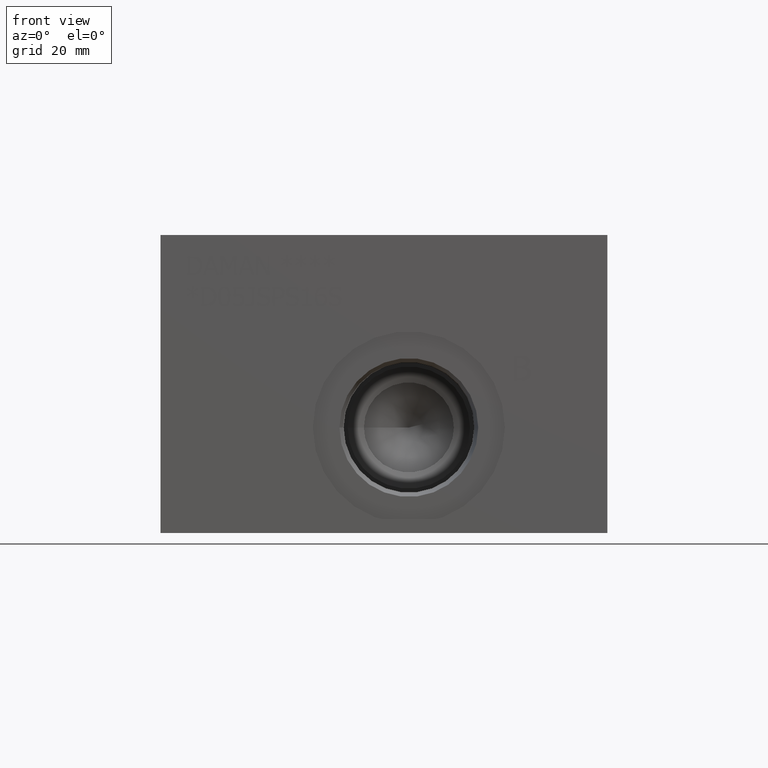
[diagram: clean part render]
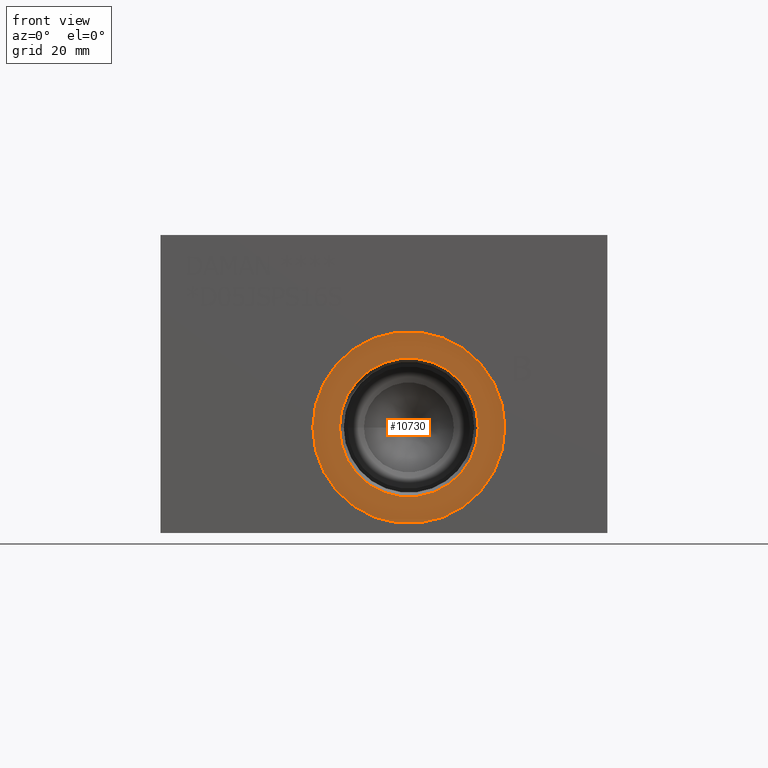
[diagram: same view with one face highlighted and labeled with its STEP entity id]
A machine part, front view. The second image highlights one B-rep face of the part: STEP entity #10730.
In plain terms, the highlighted planar face has unit normal (0, 1, 0).
Its self-contained STEP definition (entity closure, byte-faithful):
#230=CIRCLE('',#11272,24.5618);
#231=CIRCLE('',#11273,24.5618);
#232=CIRCLE('',#11275,17.7546);
#233=CIRCLE('',#11276,17.7546);
#358=FACE_BOUND('',#1929,.T.);
#1322=FACE_OUTER_BOUND('',#1928,.T.);
#1928=EDGE_LOOP('',(#9232,#9233));
#1929=EDGE_LOOP('',(#9234,#9235));
#4934=VERTEX_POINT('',#18291);
#4935=VERTEX_POINT('',#18293);
#4936=VERTEX_POINT('',#18297);
#4937=VERTEX_POINT('',#18298);
#6399=EDGE_CURVE('',#4934,#4935,#230,.T.);
#6400=EDGE_CURVE('',#4935,#4934,#231,.T.);
#6401=EDGE_CURVE('',#4936,#4937,#232,.T.);
#6402=EDGE_CURVE('',#4937,#4936,#233,.T.);
#9232=ORIENTED_EDGE('',*,*,#6400,.F.);
#9233=ORIENTED_EDGE('',*,*,#6399,.F.);
#9234=ORIENTED_EDGE('',*,*,#6401,.T.);
#9235=ORIENTED_EDGE('',*,*,#6402,.T.);
#9787=PLANE('',#11274);
#10730=ADVANCED_FACE('',(#1322,#358),#9787,.F.);
#11272=AXIS2_PLACEMENT_3D('',#18294,#13332,#13333);
#11273=AXIS2_PLACEMENT_3D('',#18295,#13334,#13335);
#11274=AXIS2_PLACEMENT_3D('',#18296,#13336,#13337);
#11275=AXIS2_PLACEMENT_3D('',#18299,#13338,#13339);
#11276=AXIS2_PLACEMENT_3D('',#18300,#13340,#13341);
#13332=DIRECTION('center_axis',(0.,1.,0.));
#13333=DIRECTION('ref_axis',(1.,0.,0.));
#13334=DIRECTION('center_axis',(0.,1.,0.));
#13335=DIRECTION('ref_axis',(1.,0.,0.));
#13336=DIRECTION('center_axis',(0.,1.,0.));
#13337=DIRECTION('ref_axis',(0.,0.,1.));
#13338=DIRECTION('center_axis',(0.,1.,0.));
#13339=DIRECTION('ref_axis',(1.,0.,0.));
#13340=DIRECTION('center_axis',(0.,1.,0.));
#13341=DIRECTION('ref_axis',(1.,0.,0.));
#18291=CARTESIAN_POINT('',(38.9382,0.7874,26.9748));
#18293=CARTESIAN_POINT('',(88.0618,0.7874,26.9748));
#18294=CARTESIAN_POINT('Origin',(63.5,0.7874,26.9748));
#18295=CARTESIAN_POINT('Origin',(63.5,0.7874,26.9748));
#18296=CARTESIAN_POINT('Origin',(81.2546,0.7874,26.9748));
#18297=CARTESIAN_POINT('',(81.2546,0.7874,26.9748));
#18298=CARTESIAN_POINT('',(45.7454,0.787399999999999,26.9748));
#18299=CARTESIAN_POINT('Origin',(63.5,0.7874,26.9748));
#18300=CARTESIAN_POINT('Origin',(63.5,0.7874,26.9748));